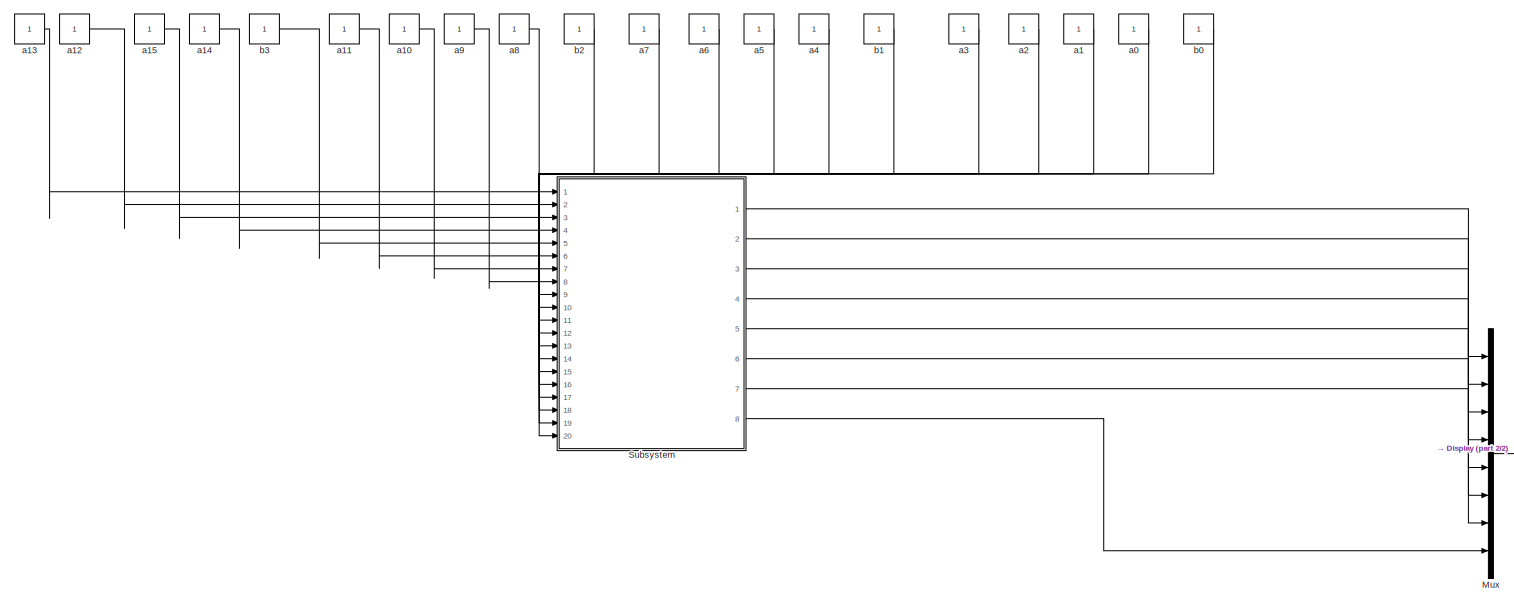
[diagram: root canvas - part 1/2, most of the canvas]
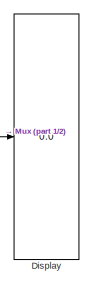
[diagram: root canvas - part 2/2, bottom right region]
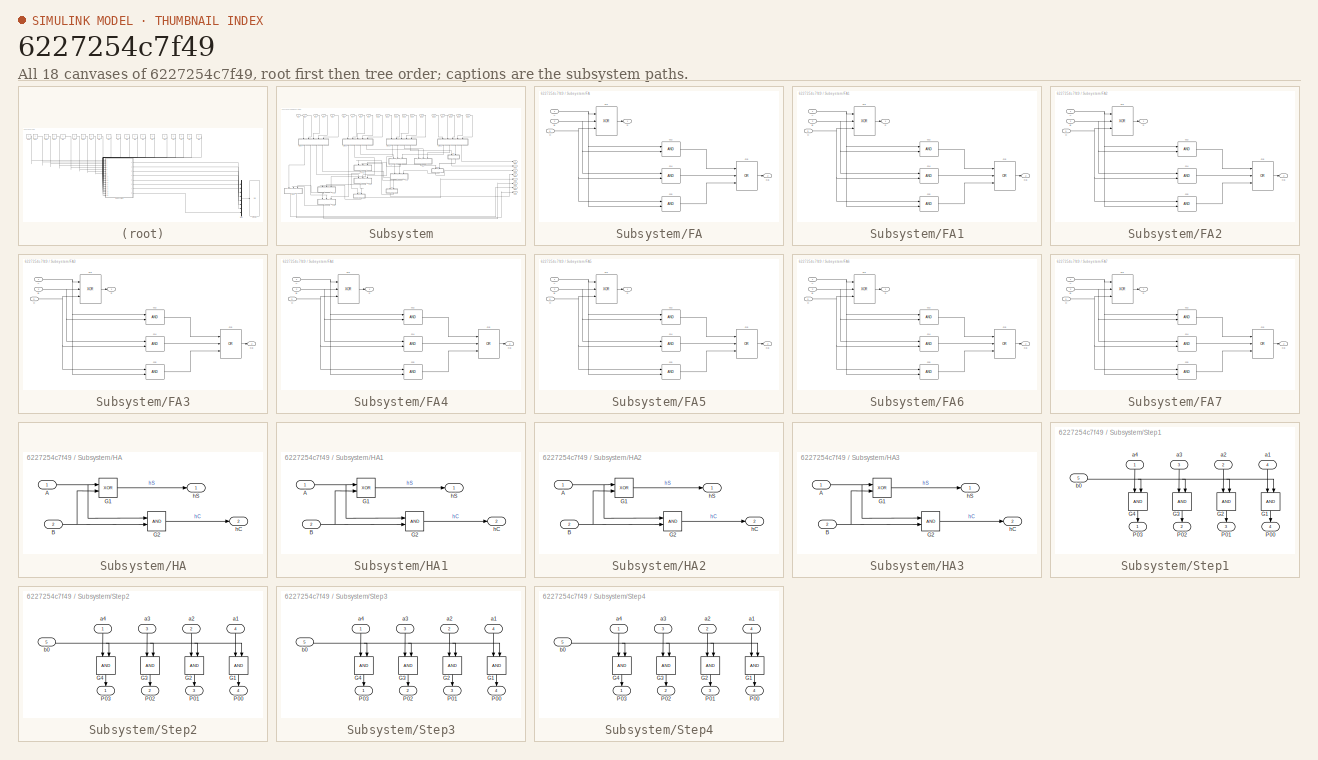
[diagram: thumbnail index - all 18 canvases of the model, root first then tree order]
MODEL slx_6227254c7f49
KIND model
CONFIG AbsTol = auto
CONFIG FixedStep = auto
CONFIG MaxStep = auto
CONFIG MinStep = auto
CONFIG RelTol = 1e-3
CONFIG SampleTimeConstraint = Unconstrained
CONFIG Solver = ode45
CONFIG SolverMode = Auto
CONFIG SolverName = ode45
CONFIG StartTime = 0.0
CONFIG StopTime = 10.0
BLOCK [Display] Display
  Decimation = 1
  Ports = [1]
BLOCK [Mux] Mux
  DisplayOption = bar
  Inputs = 8
  Ports = [8, 1]
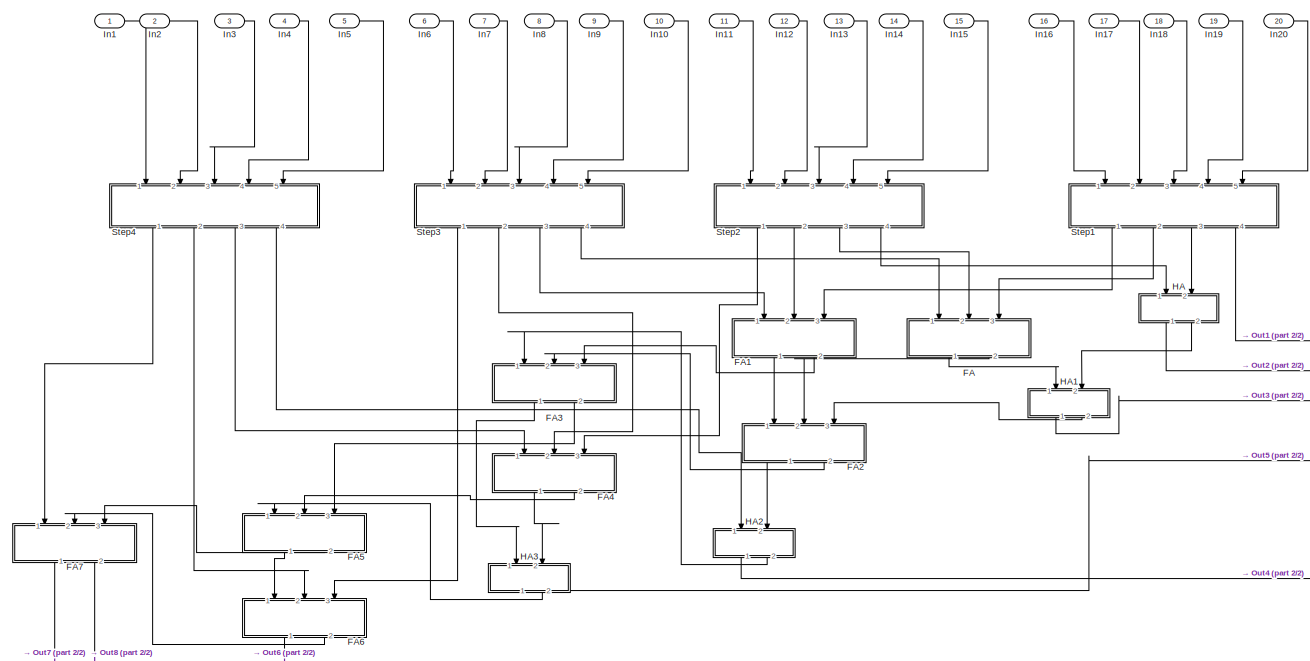
[diagram: Subsystem - part 1/2, most of the canvas]
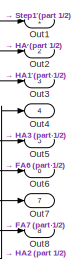
[diagram: Subsystem - part 2/2, middle right region]
BLOCK [SubSystem] Subsystem
  Ports = [20, 8]
  RequestExecContextInheritance = off
BLOCK [SubSystem] Subsystem/FA
  Ports = [3, 2]
  RequestExecContextInheritance = off
BLOCK [Inport] Subsystem/FA/A
  IconDisplay = Port number
BLOCK [Inport] Subsystem/FA/B
  IconDisplay = Port number
  Port = 2
BLOCK [Inport] Subsystem/FA/C
  IconDisplay = Port number
  Port = 3
BLOCK [Outport] Subsystem/FA/Ca
  IconDisplay = Port number
  Port = 2
BLOCK [Logic] Subsystem/FA/G1
  AllPortsSameDT = off
  IconShape = distinctive
  Inputs = 3
  Operator = XOR
  OutDataTypeStr = boolean
  Ports = [3, 1]
BLOCK [Logic] Subsystem/FA/G2
  AllPortsSameDT = off
  IconShape = distinctive
  OutDataTypeStr = boolean
  Ports = [2, 1]
BLOCK [Logic] Subsystem/FA/G3
  AllPortsSameDT = off
  IconShape = distinctive
  Inputs = 3
  Operator = OR
  OutDataTypeStr = boolean
  Ports = [3, 1]
BLOCK [Logic] Subsystem/FA/G4
  AllPortsSameDT = off
  IconShape = distinctive
  OutDataTypeStr = boolean
  Ports = [2, 1]
BLOCK [Logic] Subsystem/FA/G5
  AllPortsSameDT = off
  IconShape = distinctive
  OutDataTypeStr = boolean
  Ports = [2, 1]
BLOCK [Outport] Subsystem/FA/S
  IconDisplay = Port number
BLOCK [SubSystem] Subsystem/FA1
  Ports = [3, 2]
  RequestExecContextInheritance = off
BLOCK [Inport] Subsystem/FA1/A
  IconDisplay = Port number
BLOCK [Inport] Subsystem/FA1/B
  IconDisplay = Port number
  Port = 2
BLOCK [Inport] Subsystem/FA1/C
  IconDisplay = Port number
  Port = 3
BLOCK [Outport] Subsystem/FA1/Ca
  IconDisplay = Port number
  Port = 2
BLOCK [Logic] Subsystem/FA1/G1
  AllPortsSameDT = off
  IconShape = distinctive
  Inputs = 3
  Operator = XOR
  OutDataTypeStr = boolean
  Ports = [3, 1]
BLOCK [Logic] Subsystem/FA1/G2
  AllPortsSameDT = off
  IconShape = distinctive
  OutDataTypeStr = boolean
  Ports = [2, 1]
BLOCK [Logic] Subsystem/FA1/G3
  AllPortsSameDT = off
  IconShape = distinctive
  Inputs = 3
  Operator = OR
  OutDataTypeStr = boolean
  Ports = [3, 1]
BLOCK [Logic] Subsystem/FA1/G4
  AllPortsSameDT = off
  IconShape = distinctive
  OutDataTypeStr = boolean
  Ports = [2, 1]
BLOCK [Logic] Subsystem/FA1/G5
  AllPortsSameDT = off
  IconShape = distinctive
  OutDataTypeStr = boolean
  Ports = [2, 1]
BLOCK [Outport] Subsystem/FA1/S
  IconDisplay = Port number
BLOCK [SubSystem] Subsystem/FA2
  Ports = [3, 2]
  RequestExecContextInheritance = off
BLOCK [Inport] Subsystem/FA2/A
  IconDisplay = Port number
BLOCK [Inport] Subsystem/FA2/B
  IconDisplay = Port number
  Port = 2
BLOCK [Inport] Subsystem/FA2/C
  IconDisplay = Port number
  Port = 3
BLOCK [Outport] Subsystem/FA2/Ca
  IconDisplay = Port number
  Port = 2
BLOCK [Logic] Subsystem/FA2/G1
  AllPortsSameDT = off
  IconShape = distinctive
  Inputs = 3
  Operator = XOR
  OutDataTypeStr = boolean
  Ports = [3, 1]
BLOCK [Logic] Subsystem/FA2/G2
  AllPortsSameDT = off
  IconShape = distinctive
  OutDataTypeStr = boolean
  Ports = [2, 1]
BLOCK [Logic] Subsystem/FA2/G3
  AllPortsSameDT = off
  IconShape = distinctive
  Inputs = 3
  Operator = OR
  OutDataTypeStr = boolean
  Ports = [3, 1]
BLOCK [Logic] Subsystem/FA2/G4
  AllPortsSameDT = off
  IconShape = distinctive
  OutDataTypeStr = boolean
  Ports = [2, 1]
BLOCK [Logic] Subsystem/FA2/G5
  AllPortsSameDT = off
  IconShape = distinctive
  OutDataTypeStr = boolean
  Ports = [2, 1]
BLOCK [Outport] Subsystem/FA2/S
  IconDisplay = Port number
BLOCK [SubSystem] Subsystem/FA3
  Ports = [3, 2]
  RequestExecContextInheritance = off
BLOCK [Inport] Subsystem/FA3/A
  IconDisplay = Port number
BLOCK [Inport] Subsystem/FA3/B
  IconDisplay = Port number
  Port = 2
BLOCK [Inport] Subsystem/FA3/C
  IconDisplay = Port number
  Port = 3
BLOCK [Outport] Subsystem/FA3/Ca
  IconDisplay = Port number
  Port = 2
BLOCK [Logic] Subsystem/FA3/G1
  AllPortsSameDT = off
  IconShape = distinctive
  Inputs = 3
  Operator = XOR
  OutDataTypeStr = boolean
  Ports = [3, 1]
BLOCK [Logic] Subsystem/FA3/G2
  AllPortsSameDT = off
  IconShape = distinctive
  OutDataTypeStr = boolean
  Ports = [2, 1]
BLOCK [Logic] Subsystem/FA3/G3
  AllPortsSameDT = off
  IconShape = distinctive
  Inputs = 3
  Operator = OR
  OutDataTypeStr = boolean
  Ports = [3, 1]
BLOCK [Logic] Subsystem/FA3/G4
  AllPortsSameDT = off
  IconShape = distinctive
  OutDataTypeStr = boolean
  Ports = [2, 1]
BLOCK [Logic] Subsystem/FA3/G5
  AllPortsSameDT = off
  IconShape = distinctive
  OutDataTypeStr = boolean
  Ports = [2, 1]
BLOCK [Outport] Subsystem/FA3/S
  IconDisplay = Port number
BLOCK [SubSystem] Subsystem/FA4
  Ports = [3, 2]
  RequestExecContextInheritance = off
BLOCK [Inport] Subsystem/FA4/A
  IconDisplay = Port number
BLOCK [Inport] Subsystem/FA4/B
  IconDisplay = Port number
  Port = 2
BLOCK [Inport] Subsystem/FA4/C
  IconDisplay = Port number
  Port = 3
BLOCK [Outport] Subsystem/FA4/Ca
  IconDisplay = Port number
  Port = 2
BLOCK [Logic] Subsystem/FA4/G1
  AllPortsSameDT = off
  IconShape = distinctive
  Inputs = 3
  Operator = XOR
  OutDataTypeStr = boolean
  Ports = [3, 1]
BLOCK [Logic] Subsystem/FA4/G2
  AllPortsSameDT = off
  IconShape = distinctive
  OutDataTypeStr = boolean
  Ports = [2, 1]
BLOCK [Logic] Subsystem/FA4/G3
  AllPortsSameDT = off
  IconShape = distinctive
  Inputs = 3
  Operator = OR
  OutDataTypeStr = boolean
  Ports = [3, 1]
BLOCK [Logic] Subsystem/FA4/G4
  AllPortsSameDT = off
  IconShape = distinctive
  OutDataTypeStr = boolean
  Ports = [2, 1]
BLOCK [Logic] Subsystem/FA4/G5
  AllPortsSameDT = off
  IconShape = distinctive
  OutDataTypeStr = boolean
  Ports = [2, 1]
BLOCK [Outport] Subsystem/FA4/S
  IconDisplay = Port number
BLOCK [SubSystem] Subsystem/FA5
  Ports = [3, 2]
  RequestExecContextInheritance = off
BLOCK [Inport] Subsystem/FA5/A
  IconDisplay = Port number
BLOCK [Inport] Subsystem/FA5/B
  IconDisplay = Port number
  Port = 2
BLOCK [Inport] Subsystem/FA5/C
  IconDisplay = Port number
  Port = 3
BLOCK [Outport] Subsystem/FA5/Ca
  IconDisplay = Port number
  Port = 2
BLOCK [Logic] Subsystem/FA5/G1
  AllPortsSameDT = off
  IconShape = distinctive
  Inputs = 3
  Operator = XOR
  OutDataTypeStr = boolean
  Ports = [3, 1]
BLOCK [Logic] Subsystem/FA5/G2
  AllPortsSameDT = off
  IconShape = distinctive
  OutDataTypeStr = boolean
  Ports = [2, 1]
BLOCK [Logic] Subsystem/FA5/G3
  AllPortsSameDT = off
  IconShape = distinctive
  Inputs = 3
  Operator = OR
  OutDataTypeStr = boolean
  Ports = [3, 1]
BLOCK [Logic] Subsystem/FA5/G4
  AllPortsSameDT = off
  IconShape = distinctive
  OutDataTypeStr = boolean
  Ports = [2, 1]
BLOCK [Logic] Subsystem/FA5/G5
  AllPortsSameDT = off
  IconShape = distinctive
  OutDataTypeStr = boolean
  Ports = [2, 1]
BLOCK [Outport] Subsystem/FA5/S
  IconDisplay = Port number
BLOCK [SubSystem] Subsystem/FA6
  Ports = [3, 2]
  RequestExecContextInheritance = off
BLOCK [Inport] Subsystem/FA6/A
  IconDisplay = Port number
BLOCK [Inport] Subsystem/FA6/B
  IconDisplay = Port number
  Port = 2
BLOCK [Inport] Subsystem/FA6/C
  IconDisplay = Port number
  Port = 3
BLOCK [Outport] Subsystem/FA6/Ca
  IconDisplay = Port number
  Port = 2
BLOCK [Logic] Subsystem/FA6/G1
  AllPortsSameDT = off
  IconShape = distinctive
  Inputs = 3
  Operator = XOR
  OutDataTypeStr = boolean
  Ports = [3, 1]
BLOCK [Logic] Subsystem/FA6/G2
  AllPortsSameDT = off
  IconShape = distinctive
  OutDataTypeStr = boolean
  Ports = [2, 1]
BLOCK [Logic] Subsystem/FA6/G3
  AllPortsSameDT = off
  IconShape = distinctive
  Inputs = 3
  Operator = OR
  OutDataTypeStr = boolean
  Ports = [3, 1]
BLOCK [Logic] Subsystem/FA6/G4
  AllPortsSameDT = off
  IconShape = distinctive
  OutDataTypeStr = boolean
  Ports = [2, 1]
BLOCK [Logic] Subsystem/FA6/G5
  AllPortsSameDT = off
  IconShape = distinctive
  OutDataTypeStr = boolean
  Ports = [2, 1]
BLOCK [Outport] Subsystem/FA6/S
  IconDisplay = Port number
BLOCK [SubSystem] Subsystem/FA7
  Ports = [3, 2]
  RequestExecContextInheritance = off
BLOCK [Inport] Subsystem/FA7/A
  IconDisplay = Port number
BLOCK [Inport] Subsystem/FA7/B
  IconDisplay = Port number
  Port = 2
BLOCK [Inport] Subsystem/FA7/C
  IconDisplay = Port number
  Port = 3
BLOCK [Outport] Subsystem/FA7/Ca
  IconDisplay = Port number
  Port = 2
BLOCK [Logic] Subsystem/FA7/G1
  AllPortsSameDT = off
  IconShape = distinctive
  Inputs = 3
  Operator = XOR
  OutDataTypeStr = boolean
  Ports = [3, 1]
BLOCK [Logic] Subsystem/FA7/G2
  AllPortsSameDT = off
  IconShape = distinctive
  OutDataTypeStr = boolean
  Ports = [2, 1]
BLOCK [Logic] Subsystem/FA7/G3
  AllPortsSameDT = off
  IconShape = distinctive
  Inputs = 3
  Operator = OR
  OutDataTypeStr = boolean
  Ports = [3, 1]
BLOCK [Logic] Subsystem/FA7/G4
  AllPortsSameDT = off
  IconShape = distinctive
  OutDataTypeStr = boolean
  Ports = [2, 1]
BLOCK [Logic] Subsystem/FA7/G5
  AllPortsSameDT = off
  IconShape = distinctive
  OutDataTypeStr = boolean
  Ports = [2, 1]
BLOCK [Outport] Subsystem/FA7/S
  IconDisplay = Port number
BLOCK [SubSystem] Subsystem/HA
  Ports = [2, 2]
  RequestExecContextInheritance = off
BLOCK [Inport] Subsystem/HA/A
  IconDisplay = Port number
BLOCK [Inport] Subsystem/HA/B
  IconDisplay = Port number
  Port = 2
BLOCK [Logic] Subsystem/HA/G1
  AllPortsSameDT = off
  IconShape = distinctive
  Operator = XOR
  OutDataTypeStr = boolean
  Ports = [2, 1]
BLOCK [Logic] Subsystem/HA/G2
  AllPortsSameDT = off
  IconShape = distinctive
  OutDataTypeStr = boolean
  Ports = [2, 1]
BLOCK [Outport] Subsystem/HA/hC
  IconDisplay = Port number
  Port = 2
BLOCK [Outport] Subsystem/HA/hS
  IconDisplay = Port number
BLOCK [SubSystem] Subsystem/HA1
  Ports = [2, 2]
  RequestExecContextInheritance = off
BLOCK [Inport] Subsystem/HA1/A
  IconDisplay = Port number
BLOCK [Inport] Subsystem/HA1/B
  IconDisplay = Port number
  Port = 2
BLOCK [Logic] Subsystem/HA1/G1
  AllPortsSameDT = off
  IconShape = distinctive
  Operator = XOR
  OutDataTypeStr = boolean
  Ports = [2, 1]
BLOCK [Logic] Subsystem/HA1/G2
  AllPortsSameDT = off
  IconShape = distinctive
  OutDataTypeStr = boolean
  Ports = [2, 1]
BLOCK [Outport] Subsystem/HA1/hC
  IconDisplay = Port number
  Port = 2
BLOCK [Outport] Subsystem/HA1/hS
  IconDisplay = Port number
BLOCK [SubSystem] Subsystem/HA2
  Ports = [2, 2]
  RequestExecContextInheritance = off
BLOCK [Inport] Subsystem/HA2/A
  IconDisplay = Port number
BLOCK [Inport] Subsystem/HA2/B
  IconDisplay = Port number
  Port = 2
BLOCK [Logic] Subsystem/HA2/G1
  AllPortsSameDT = off
  IconShape = distinctive
  Operator = XOR
  OutDataTypeStr = boolean
  Ports = [2, 1]
BLOCK [Logic] Subsystem/HA2/G2
  AllPortsSameDT = off
  IconShape = distinctive
  OutDataTypeStr = boolean
  Ports = [2, 1]
BLOCK [Outport] Subsystem/HA2/hC
  IconDisplay = Port number
  Port = 2
BLOCK [Outport] Subsystem/HA2/hS
  IconDisplay = Port number
BLOCK [SubSystem] Subsystem/HA3
  Ports = [2, 2]
  RequestExecContextInheritance = off
BLOCK [Inport] Subsystem/HA3/A
  IconDisplay = Port number
BLOCK [Inport] Subsystem/HA3/B
  IconDisplay = Port number
  Port = 2
BLOCK [Logic] Subsystem/HA3/G1
  AllPortsSameDT = off
  IconShape = distinctive
  Operator = XOR
  OutDataTypeStr = boolean
  Ports = [2, 1]
BLOCK [Logic] Subsystem/HA3/G2
  AllPortsSameDT = off
  IconShape = distinctive
  OutDataTypeStr = boolean
  Ports = [2, 1]
BLOCK [Outport] Subsystem/HA3/hC
  IconDisplay = Port number
  Port = 2
BLOCK [Outport] Subsystem/HA3/hS
  IconDisplay = Port number
BLOCK [Inport] Subsystem/In1
  IconDisplay = Port number
BLOCK [Inport] Subsystem/In10
  IconDisplay = Port number
  Port = 10
BLOCK [Inport] Subsystem/In11
  IconDisplay = Port number
  Port = 11
BLOCK [Inport] Subsystem/In12
  IconDisplay = Port number
  Port = 12
BLOCK [Inport] Subsystem/In13
  IconDisplay = Port number
  Port = 13
BLOCK [Inport] Subsystem/In14
  IconDisplay = Port number
  Port = 14
BLOCK [Inport] Subsystem/In15
  IconDisplay = Port number
  Port = 15
BLOCK [Inport] Subsystem/In16
  IconDisplay = Port number
  Port = 16
BLOCK [Inport] Subsystem/In17
  IconDisplay = Port number
  Port = 17
BLOCK [Inport] Subsystem/In18
  IconDisplay = Port number
  Port = 18
BLOCK [Inport] Subsystem/In19
  IconDisplay = Port number
  Port = 19
BLOCK [Inport] Subsystem/In2
  IconDisplay = Port number
  Port = 2
BLOCK [Inport] Subsystem/In20
  IconDisplay = Port number
  Port = 20
BLOCK [Inport] Subsystem/In3
  IconDisplay = Port number
  Port = 3
BLOCK [Inport] Subsystem/In4
  IconDisplay = Port number
  Port = 4
BLOCK [Inport] Subsystem/In5
  IconDisplay = Port number
  Port = 5
BLOCK [Inport] Subsystem/In6
  IconDisplay = Port number
  Port = 6
BLOCK [Inport] Subsystem/In7
  IconDisplay = Port number
  Port = 7
BLOCK [Inport] Subsystem/In8
  IconDisplay = Port number
  Port = 8
BLOCK [Inport] Subsystem/In9
  IconDisplay = Port number
  Port = 9
BLOCK [Outport] Subsystem/Out1
  IconDisplay = Port number
BLOCK [Outport] Subsystem/Out2
  IconDisplay = Port number
  Port = 2
BLOCK [Outport] Subsystem/Out3
  IconDisplay = Port number
  Port = 3
BLOCK [Outport] Subsystem/Out4
  IconDisplay = Port number
  Port = 4
BLOCK [Outport] Subsystem/Out5
  IconDisplay = Port number
  Port = 5
BLOCK [Outport] Subsystem/Out6
  IconDisplay = Port number
  Port = 6
BLOCK [Outport] Subsystem/Out7
  IconDisplay = Port number
  Port = 7
BLOCK [Outport] Subsystem/Out8
  IconDisplay = Port number
  Port = 8
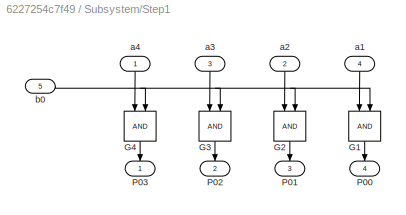
BLOCK [SubSystem] Subsystem/Step1
  Ports = [5, 4]
  RequestExecContextInheritance = off
BLOCK [Logic] Subsystem/Step1/G1
  AllPortsSameDT = off
  IconShape = distinctive
  OutDataTypeStr = boolean
  Ports = [2, 1]
BLOCK [Logic] Subsystem/Step1/G2
  AllPortsSameDT = off
  IconShape = distinctive
  OutDataTypeStr = boolean
  Ports = [2, 1]
BLOCK [Logic] Subsystem/Step1/G3
  AllPortsSameDT = off
  IconShape = distinctive
  OutDataTypeStr = boolean
  Ports = [2, 1]
BLOCK [Logic] Subsystem/Step1/G4
  AllPortsSameDT = off
  IconShape = distinctive
  OutDataTypeStr = boolean
  Ports = [2, 1]
BLOCK [Outport] Subsystem/Step1/P00
  IconDisplay = Port number
  Port = 4
BLOCK [Outport] Subsystem/Step1/P01
  IconDisplay = Port number
  Port = 3
BLOCK [Outport] Subsystem/Step1/P02
  IconDisplay = Port number
  Port = 2
BLOCK [Outport] Subsystem/Step1/P03
  IconDisplay = Port number
BLOCK [Inport] Subsystem/Step1/a1
  IconDisplay = Port number
  Port = 4
BLOCK [Inport] Subsystem/Step1/a2
  IconDisplay = Port number
  Port = 2
BLOCK [Inport] Subsystem/Step1/a3
  IconDisplay = Port number
  Port = 3
BLOCK [Inport] Subsystem/Step1/a4
  IconDisplay = Port number
BLOCK [Inport] Subsystem/Step1/b0
  IconDisplay = Port number
  Port = 5
BLOCK [SubSystem] Subsystem/Step2
  Ports = [5, 4]
  RequestExecContextInheritance = off
BLOCK [Logic] Subsystem/Step2/G1
  AllPortsSameDT = off
  IconShape = distinctive
  OutDataTypeStr = boolean
  Ports = [2, 1]
BLOCK [Logic] Subsystem/Step2/G2
  AllPortsSameDT = off
  IconShape = distinctive
  OutDataTypeStr = boolean
  Ports = [2, 1]
BLOCK [Logic] Subsystem/Step2/G3
  AllPortsSameDT = off
  IconShape = distinctive
  OutDataTypeStr = boolean
  Ports = [2, 1]
BLOCK [Logic] Subsystem/Step2/G4
  AllPortsSameDT = off
  IconShape = distinctive
  OutDataTypeStr = boolean
  Ports = [2, 1]
BLOCK [Outport] Subsystem/Step2/P00
  IconDisplay = Port number
  Port = 4
BLOCK [Outport] Subsystem/Step2/P01
  IconDisplay = Port number
  Port = 3
BLOCK [Outport] Subsystem/Step2/P02
  IconDisplay = Port number
  Port = 2
BLOCK [Outport] Subsystem/Step2/P03
  IconDisplay = Port number
BLOCK [Inport] Subsystem/Step2/a1
  IconDisplay = Port number
  Port = 4
BLOCK [Inport] Subsystem/Step2/a2
  IconDisplay = Port number
  Port = 2
BLOCK [Inport] Subsystem/Step2/a3
  IconDisplay = Port number
  Port = 3
BLOCK [Inport] Subsystem/Step2/a4
  IconDisplay = Port number
BLOCK [Inport] Subsystem/Step2/b0
  IconDisplay = Port number
  Port = 5
BLOCK [SubSystem] Subsystem/Step3
  Ports = [5, 4]
  RequestExecContextInheritance = off
BLOCK [Logic] Subsystem/Step3/G1
  AllPortsSameDT = off
  IconShape = distinctive
  OutDataTypeStr = boolean
  Ports = [2, 1]
BLOCK [Logic] Subsystem/Step3/G2
  AllPortsSameDT = off
  IconShape = distinctive
  OutDataTypeStr = boolean
  Ports = [2, 1]
BLOCK [Logic] Subsystem/Step3/G3
  AllPortsSameDT = off
  IconShape = distinctive
  OutDataTypeStr = boolean
  Ports = [2, 1]
BLOCK [Logic] Subsystem/Step3/G4
  AllPortsSameDT = off
  IconShape = distinctive
  OutDataTypeStr = boolean
  Ports = [2, 1]
BLOCK [Outport] Subsystem/Step3/P00
  IconDisplay = Port number
  Port = 4
BLOCK [Outport] Subsystem/Step3/P01
  IconDisplay = Port number
  Port = 3
BLOCK [Outport] Subsystem/Step3/P02
  IconDisplay = Port number
  Port = 2
BLOCK [Outport] Subsystem/Step3/P03
  IconDisplay = Port number
BLOCK [Inport] Subsystem/Step3/a1
  IconDisplay = Port number
  Port = 4
BLOCK [Inport] Subsystem/Step3/a2
  IconDisplay = Port number
  Port = 2
BLOCK [Inport] Subsystem/Step3/a3
  IconDisplay = Port number
  Port = 3
BLOCK [Inport] Subsystem/Step3/a4
  IconDisplay = Port number
BLOCK [Inport] Subsystem/Step3/b0
  IconDisplay = Port number
  Port = 5
BLOCK [SubSystem] Subsystem/Step4
  Ports = [5, 4]
  RequestExecContextInheritance = off
BLOCK [Logic] Subsystem/Step4/G1
  AllPortsSameDT = off
  IconShape = distinctive
  OutDataTypeStr = boolean
  Ports = [2, 1]
BLOCK [Logic] Subsystem/Step4/G2
  AllPortsSameDT = off
  IconShape = distinctive
  OutDataTypeStr = boolean
  Ports = [2, 1]
BLOCK [Logic] Subsystem/Step4/G3
  AllPortsSameDT = off
  IconShape = distinctive
  OutDataTypeStr = boolean
  Ports = [2, 1]
BLOCK [Logic] Subsystem/Step4/G4
  AllPortsSameDT = off
  IconShape = distinctive
  OutDataTypeStr = boolean
  Ports = [2, 1]
BLOCK [Outport] Subsystem/Step4/P00
  IconDisplay = Port number
  Port = 4
BLOCK [Outport] Subsystem/Step4/P01
  IconDisplay = Port number
  Port = 3
BLOCK [Outport] Subsystem/Step4/P02
  IconDisplay = Port number
  Port = 2
BLOCK [Outport] Subsystem/Step4/P03
  IconDisplay = Port number
BLOCK [Inport] Subsystem/Step4/a1
  IconDisplay = Port number
  Port = 4
BLOCK [Inport] Subsystem/Step4/a2
  IconDisplay = Port number
  Port = 2
BLOCK [Inport] Subsystem/Step4/a3
  IconDisplay = Port number
  Port = 3
BLOCK [Inport] Subsystem/Step4/a4
  IconDisplay = Port number
BLOCK [Inport] Subsystem/Step4/b0
  IconDisplay = Port number
  Port = 5
BLOCK [Constant] a0
BLOCK [Constant] a1
BLOCK [Constant] a10
BLOCK [Constant] a11
BLOCK [Constant] a12
BLOCK [Constant] a13
BLOCK [Constant] a14
BLOCK [Constant] a15
BLOCK [Constant] a2
BLOCK [Constant] a3
BLOCK [Constant] a4
BLOCK [Constant] a5
BLOCK [Constant] a6
BLOCK [Constant] a7
BLOCK [Constant] a8
BLOCK [Constant] a9
BLOCK [Constant] b0
BLOCK [Constant] b1
BLOCK [Constant] b2
BLOCK [Constant] b3
LINE Mux:1 -> Display:1
NET Subsystem/FA/A:1 -> Subsystem/FA/G1:1, Subsystem/FA/G2:1, Subsystem/FA/G5:2
NET Subsystem/FA/B:1 -> Subsystem/FA/G1:2, Subsystem/FA/G2:2, Subsystem/FA/G4:1
NET Subsystem/FA/C:1 -> Subsystem/FA/G1:3, Subsystem/FA/G4:2, Subsystem/FA/G5:1
LINE Subsystem/FA/G1:1 -> Subsystem/FA/S:1
LINE Subsystem/FA/G2:1 -> Subsystem/FA/G3:1
LINE Subsystem/FA/G3:1 -> Subsystem/FA/Ca:1
LINE Subsystem/FA/G4:1 -> Subsystem/FA/G3:2
LINE Subsystem/FA/G5:1 -> Subsystem/FA/G3:3
NET Subsystem/FA1/A:1 -> Subsystem/FA1/G1:1, Subsystem/FA1/G2:1, Subsystem/FA1/G5:2
NET Subsystem/FA1/B:1 -> Subsystem/FA1/G1:2, Subsystem/FA1/G2:2, Subsystem/FA1/G4:1
NET Subsystem/FA1/C:1 -> Subsystem/FA1/G1:3, Subsystem/FA1/G4:2, Subsystem/FA1/G5:1
LINE Subsystem/FA1/G1:1 -> Subsystem/FA1/S:1
LINE Subsystem/FA1/G2:1 -> Subsystem/FA1/G3:1
LINE Subsystem/FA1/G3:1 -> Subsystem/FA1/Ca:1
LINE Subsystem/FA1/G4:1 -> Subsystem/FA1/G3:2
LINE Subsystem/FA1/G5:1 -> Subsystem/FA1/G3:3
LINE Subsystem/FA1:1 -> Subsystem/FA2:1
LINE Subsystem/FA1:2 -> Subsystem/FA3:3
NET Subsystem/FA2/A:1 -> Subsystem/FA2/G1:1, Subsystem/FA2/G2:1, Subsystem/FA2/G5:2
NET Subsystem/FA2/B:1 -> Subsystem/FA2/G1:2, Subsystem/FA2/G2:2, Subsystem/FA2/G4:1
NET Subsystem/FA2/C:1 -> Subsystem/FA2/G1:3, Subsystem/FA2/G4:2, Subsystem/FA2/G5:1
LINE Subsystem/FA2/G1:1 -> Subsystem/FA2/S:1
LINE Subsystem/FA2/G2:1 -> Subsystem/FA2/G3:1
LINE Subsystem/FA2/G3:1 -> Subsystem/FA2/Ca:1
LINE Subsystem/FA2/G4:1 -> Subsystem/FA2/G3:2
LINE Subsystem/FA2/G5:1 -> Subsystem/FA2/G3:3
LINE Subsystem/FA2:1 -> Subsystem/HA2:2
LINE Subsystem/FA2:2 -> Subsystem/FA3:2
NET Subsystem/FA3/A:1 -> Subsystem/FA3/G1:1, Subsystem/FA3/G2:1, Subsystem/FA3/G5:2
NET Subsystem/FA3/B:1 -> Subsystem/FA3/G1:2, Subsystem/FA3/G2:2, Subsystem/FA3/G4:1
NET Subsystem/FA3/C:1 -> Subsystem/FA3/G1:3, Subsystem/FA3/G4:2, Subsystem/FA3/G5:1
LINE Subsystem/FA3/G1:1 -> Subsystem/FA3/S:1
LINE Subsystem/FA3/G2:1 -> Subsystem/FA3/G3:1
LINE Subsystem/FA3/G3:1 -> Subsystem/FA3/Ca:1
LINE Subsystem/FA3/G4:1 -> Subsystem/FA3/G3:2
LINE Subsystem/FA3/G5:1 -> Subsystem/FA3/G3:3
LINE Subsystem/FA3:1 -> Subsystem/HA3:1
LINE Subsystem/FA3:2 -> Subsystem/FA5:3
NET Subsystem/FA4/A:1 -> Subsystem/FA4/G1:1, Subsystem/FA4/G2:1, Subsystem/FA4/G5:2
NET Subsystem/FA4/B:1 -> Subsystem/FA4/G1:2, Subsystem/FA4/G2:2, Subsystem/FA4/G4:1
NET Subsystem/FA4/C:1 -> Subsystem/FA4/G1:3, Subsystem/FA4/G4:2, Subsystem/FA4/G5:1
LINE Subsystem/FA4/G1:1 -> Subsystem/FA4/S:1
LINE Subsystem/FA4/G2:1 -> Subsystem/FA4/G3:1
LINE Subsystem/FA4/G3:1 -> Subsystem/FA4/Ca:1
LINE Subsystem/FA4/G4:1 -> Subsystem/FA4/G3:2
LINE Subsystem/FA4/G5:1 -> Subsystem/FA4/G3:3
LINE Subsystem/FA4:1 -> Subsystem/HA3:2
LINE Subsystem/FA4:2 -> Subsystem/FA5:2
NET Subsystem/FA5/A:1 -> Subsystem/FA5/G1:1, Subsystem/FA5/G2:1, Subsystem/FA5/G5:2
NET Subsystem/FA5/B:1 -> Subsystem/FA5/G1:2, Subsystem/FA5/G2:2, Subsystem/FA5/G4:1
NET Subsystem/FA5/C:1 -> Subsystem/FA5/G1:3, Subsystem/FA5/G4:2, Subsystem/FA5/G5:1
LINE Subsystem/FA5/G1:1 -> Subsystem/FA5/S:1
LINE Subsystem/FA5/G2:1 -> Subsystem/FA5/G3:1
LINE Subsystem/FA5/G3:1 -> Subsystem/FA5/Ca:1
LINE Subsystem/FA5/G4:1 -> Subsystem/FA5/G3:2
LINE Subsystem/FA5/G5:1 -> Subsystem/FA5/G3:3
LINE Subsystem/FA5:1 -> Subsystem/FA6:1
LINE Subsystem/FA5:2 -> Subsystem/FA7:3
NET Subsystem/FA6/A:1 -> Subsystem/FA6/G1:1, Subsystem/FA6/G2:1, Subsystem/FA6/G5:2
NET Subsystem/FA6/B:1 -> Subsystem/FA6/G1:2, Subsystem/FA6/G2:2, Subsystem/FA6/G4:1
NET Subsystem/FA6/C:1 -> Subsystem/FA6/G1:3, Subsystem/FA6/G4:2, Subsystem/FA6/G5:1
LINE Subsystem/FA6/G1:1 -> Subsystem/FA6/S:1
LINE Subsystem/FA6/G2:1 -> Subsystem/FA6/G3:1
LINE Subsystem/FA6/G3:1 -> Subsystem/FA6/Ca:1
LINE Subsystem/FA6/G4:1 -> Subsystem/FA6/G3:2
LINE Subsystem/FA6/G5:1 -> Subsystem/FA6/G3:3
LINE Subsystem/FA6:1 -> Subsystem/Out6:1
LINE Subsystem/FA6:2 -> Subsystem/FA7:2
NET Subsystem/FA7/A:1 -> Subsystem/FA7/G1:1, Subsystem/FA7/G2:1, Subsystem/FA7/G5:2
NET Subsystem/FA7/B:1 -> Subsystem/FA7/G1:2, Subsystem/FA7/G2:2, Subsystem/FA7/G4:1
NET Subsystem/FA7/C:1 -> Subsystem/FA7/G1:3, Subsystem/FA7/G4:2, Subsystem/FA7/G5:1
LINE Subsystem/FA7/G1:1 -> Subsystem/FA7/S:1
LINE Subsystem/FA7/G2:1 -> Subsystem/FA7/G3:1
LINE Subsystem/FA7/G3:1 -> Subsystem/FA7/Ca:1
LINE Subsystem/FA7/G4:1 -> Subsystem/FA7/G3:2
LINE Subsystem/FA7/G5:1 -> Subsystem/FA7/G3:3
LINE Subsystem/FA7:1 -> Subsystem/Out7:1
LINE Subsystem/FA7:2 -> Subsystem/Out8:1
LINE Subsystem/FA:1 -> Subsystem/HA1:1
LINE Subsystem/FA:2 -> Subsystem/FA2:2
NET Subsystem/HA/A:1 -> Subsystem/HA/G1:1, Subsystem/HA/G2:1
NET Subsystem/HA/B:1 -> Subsystem/HA/G1:2, Subsystem/HA/G2:2
LINE Subsystem/HA/G1:1 -> Subsystem/HA/hS:1
LINE Subsystem/HA/G2:1 -> Subsystem/HA/hC:1
NET Subsystem/HA1/A:1 -> Subsystem/HA1/G1:1, Subsystem/HA1/G2:1
NET Subsystem/HA1/B:1 -> Subsystem/HA1/G1:2, Subsystem/HA1/G2:2
LINE Subsystem/HA1/G1:1 -> Subsystem/HA1/hS:1
LINE Subsystem/HA1/G2:1 -> Subsystem/HA1/hC:1
LINE Subsystem/HA1:1 -> Subsystem/Out3:1
LINE Subsystem/HA1:2 -> Subsystem/FA2:3
NET Subsystem/HA2/A:1 -> Subsystem/HA2/G1:1, Subsystem/HA2/G2:1
NET Subsystem/HA2/B:1 -> Subsystem/HA2/G1:2, Subsystem/HA2/G2:2
LINE Subsystem/HA2/G1:1 -> Subsystem/HA2/hS:1
LINE Subsystem/HA2/G2:1 -> Subsystem/HA2/hC:1
LINE Subsystem/HA2:1 -> Subsystem/Out4:1
LINE Subsystem/HA2:2 -> Subsystem/FA3:1
NET Subsystem/HA3/A:1 -> Subsystem/HA3/G1:1, Subsystem/HA3/G2:1
NET Subsystem/HA3/B:1 -> Subsystem/HA3/G1:2, Subsystem/HA3/G2:2
LINE Subsystem/HA3/G1:1 -> Subsystem/HA3/hS:1
LINE Subsystem/HA3/G2:1 -> Subsystem/HA3/hC:1
LINE Subsystem/HA3:1 -> Subsystem/Out5:1
LINE Subsystem/HA3:2 -> Subsystem/FA5:1
LINE Subsystem/HA:1 -> Subsystem/Out2:1
LINE Subsystem/HA:2 -> Subsystem/HA1:2
LINE Subsystem/In10:1 -> Subsystem/Step3:5
LINE Subsystem/In11:1 -> Subsystem/Step2:1
LINE Subsystem/In12:1 -> Subsystem/Step2:2
LINE Subsystem/In13:1 -> Subsystem/Step2:3
LINE Subsystem/In14:1 -> Subsystem/Step2:4
LINE Subsystem/In15:1 -> Subsystem/Step2:5
LINE Subsystem/In16:1 -> Subsystem/Step1:1
LINE Subsystem/In17:1 -> Subsystem/Step1:2
LINE Subsystem/In18:1 -> Subsystem/Step1:3
LINE Subsystem/In19:1 -> Subsystem/Step1:4
LINE Subsystem/In1:1 -> Subsystem/Step4:1
LINE Subsystem/In20:1 -> Subsystem/Step1:5
LINE Subsystem/In2:1 -> Subsystem/Step4:2
LINE Subsystem/In3:1 -> Subsystem/Step4:3
LINE Subsystem/In4:1 -> Subsystem/Step4:4
LINE Subsystem/In5:1 -> Subsystem/Step4:5
LINE Subsystem/In6:1 -> Subsystem/Step3:1
LINE Subsystem/In7:1 -> Subsystem/Step3:2
LINE Subsystem/In8:1 -> Subsystem/Step3:3
LINE Subsystem/In9:1 -> Subsystem/Step3:4
LINE Subsystem/Step1/G1:1 -> Subsystem/Step1/P00:1
LINE Subsystem/Step1/G2:1 -> Subsystem/Step1/P01:1
LINE Subsystem/Step1/G3:1 -> Subsystem/Step1/P02:1
LINE Subsystem/Step1/G4:1 -> Subsystem/Step1/P03:1
LINE Subsystem/Step1/a1:1 -> Subsystem/Step1/G1:1
LINE Subsystem/Step1/a2:1 -> Subsystem/Step1/G2:1
LINE Subsystem/Step1/a3:1 -> Subsystem/Step1/G3:1
LINE Subsystem/Step1/a4:1 -> Subsystem/Step1/G4:1
NET Subsystem/Step1/b0:1 -> Subsystem/Step1/G1:2, Subsystem/Step1/G2:2, Subsystem/Step1/G3:2, Subsystem/Step1/G4:2
LINE Subsystem/Step1:1 -> Subsystem/FA1:3
LINE Subsystem/Step1:2 -> Subsystem/FA:3
LINE Subsystem/Step1:3 -> Subsystem/HA:2
LINE Subsystem/Step1:4 -> Subsystem/Out1:1
LINE Subsystem/Step2/G1:1 -> Subsystem/Step2/P00:1
LINE Subsystem/Step2/G2:1 -> Subsystem/Step2/P01:1
LINE Subsystem/Step2/G3:1 -> Subsystem/Step2/P02:1
LINE Subsystem/Step2/G4:1 -> Subsystem/Step2/P03:1
LINE Subsystem/Step2/a1:1 -> Subsystem/Step2/G1:1
LINE Subsystem/Step2/a2:1 -> Subsystem/Step2/G2:1
LINE Subsystem/Step2/a3:1 -> Subsystem/Step2/G3:1
LINE Subsystem/Step2/a4:1 -> Subsystem/Step2/G4:1
NET Subsystem/Step2/b0:1 -> Subsystem/Step2/G1:2, Subsystem/Step2/G2:2, Subsystem/Step2/G3:2, Subsystem/Step2/G4:2
LINE Subsystem/Step2:1 -> Subsystem/FA4:3
LINE Subsystem/Step2:2 -> Subsystem/FA1:2
LINE Subsystem/Step2:3 -> Subsystem/FA:2
LINE Subsystem/Step2:4 -> Subsystem/HA:1
LINE Subsystem/Step3/G1:1 -> Subsystem/Step3/P00:1
LINE Subsystem/Step3/G2:1 -> Subsystem/Step3/P01:1
LINE Subsystem/Step3/G3:1 -> Subsystem/Step3/P02:1
LINE Subsystem/Step3/G4:1 -> Subsystem/Step3/P03:1
LINE Subsystem/Step3/a1:1 -> Subsystem/Step3/G1:1
LINE Subsystem/Step3/a2:1 -> Subsystem/Step3/G2:1
LINE Subsystem/Step3/a3:1 -> Subsystem/Step3/G3:1
LINE Subsystem/Step3/a4:1 -> Subsystem/Step3/G4:1
NET Subsystem/Step3/b0:1 -> Subsystem/Step3/G1:2, Subsystem/Step3/G2:2, Subsystem/Step3/G3:2, Subsystem/Step3/G4:2
LINE Subsystem/Step3:1 -> Subsystem/FA6:3
LINE Subsystem/Step3:2 -> Subsystem/FA4:2
LINE Subsystem/Step3:3 -> Subsystem/FA1:1
LINE Subsystem/Step3:4 -> Subsystem/FA:1
LINE Subsystem/Step4/G1:1 -> Subsystem/Step4/P00:1
LINE Subsystem/Step4/G2:1 -> Subsystem/Step4/P01:1
LINE Subsystem/Step4/G3:1 -> Subsystem/Step4/P02:1
LINE Subsystem/Step4/G4:1 -> Subsystem/Step4/P03:1
LINE Subsystem/Step4/a1:1 -> Subsystem/Step4/G1:1
LINE Subsystem/Step4/a2:1 -> Subsystem/Step4/G2:1
LINE Subsystem/Step4/a3:1 -> Subsystem/Step4/G3:1
LINE Subsystem/Step4/a4:1 -> Subsystem/Step4/G4:1
NET Subsystem/Step4/b0:1 -> Subsystem/Step4/G1:2, Subsystem/Step4/G2:2, Subsystem/Step4/G3:2, Subsystem/Step4/G4:2
LINE Subsystem/Step4:1 -> Subsystem/FA7:1
LINE Subsystem/Step4:2 -> Subsystem/FA6:2
LINE Subsystem/Step4:3 -> Subsystem/FA4:1
LINE Subsystem/Step4:4 -> Subsystem/HA2:1
LINE Subsystem:1 -> Mux:1
LINE Subsystem:2 -> Mux:2
LINE Subsystem:3 -> Mux:3
LINE Subsystem:4 -> Mux:4
LINE Subsystem:5 -> Mux:5
LINE Subsystem:6 -> Mux:6
LINE Subsystem:7 -> Mux:7
LINE Subsystem:8 -> Mux:8
LINE a0:1 -> Subsystem:19
LINE a10:1 -> Subsystem:7
LINE a11:1 -> Subsystem:6
LINE a12:1 -> Subsystem:2
LINE a13:1 -> Subsystem:1
LINE a14:1 -> Subsystem:4
LINE a15:1 -> Subsystem:3
LINE a1:1 -> Subsystem:18
LINE a2:1 -> Subsystem:17
LINE a3:1 -> Subsystem:16
LINE a4:1 -> Subsystem:14
LINE a5:1 -> Subsystem:13
LINE a6:1 -> Subsystem:12
LINE a7:1 -> Subsystem:11
LINE a8:1 -> Subsystem:9
LINE a9:1 -> Subsystem:8
LINE b0:1 -> Subsystem:20
LINE b1:1 -> Subsystem:15
LINE b2:1 -> Subsystem:10
LINE b3:1 -> Subsystem:5
note: NET lines group one-source signal fan-out (src -> all destinations, sorted); 1:1 wires keep LINE
